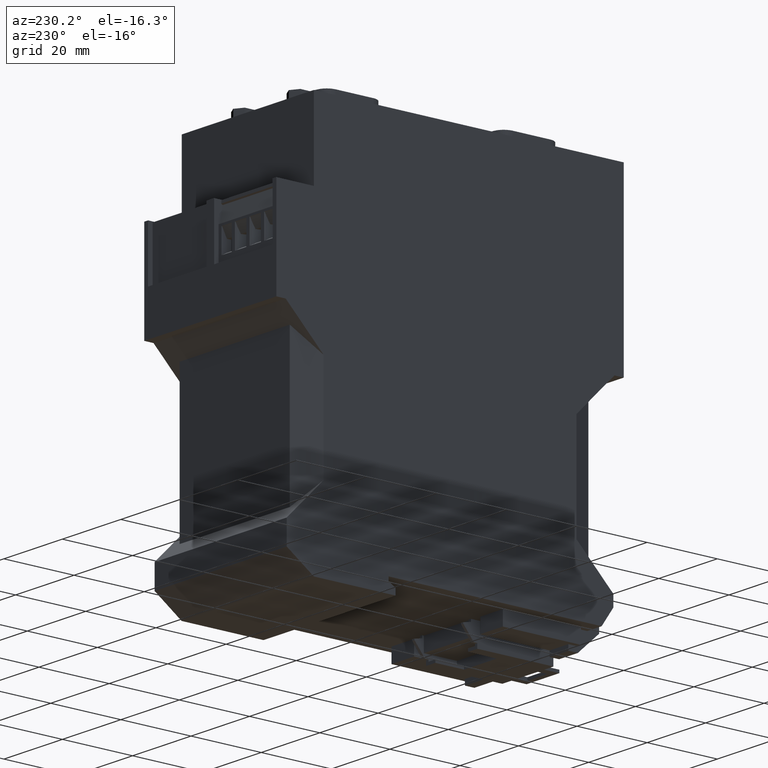
[diagram: clean part render]
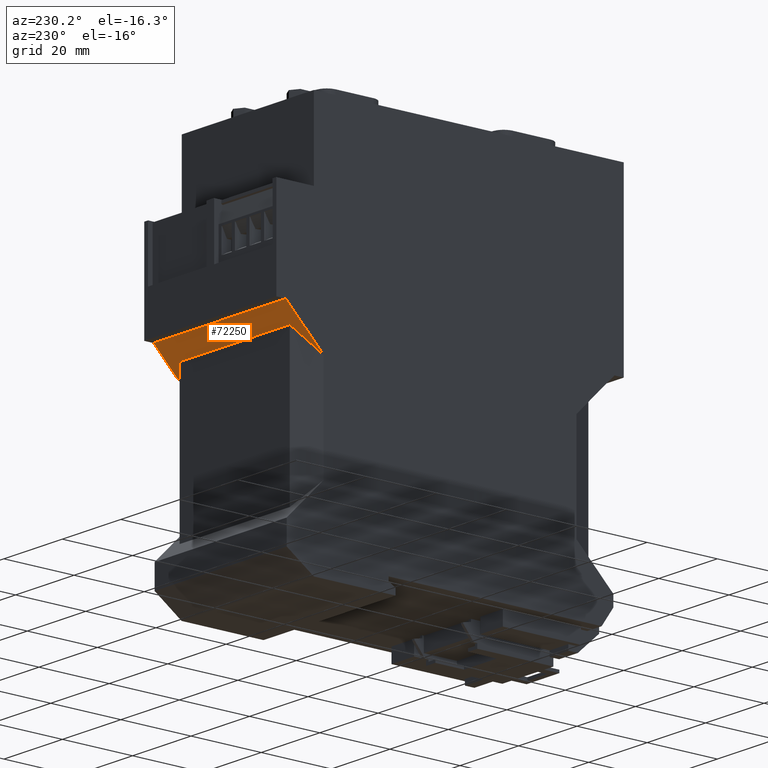
[diagram: same view with one face highlighted and labeled with its STEP entity id]
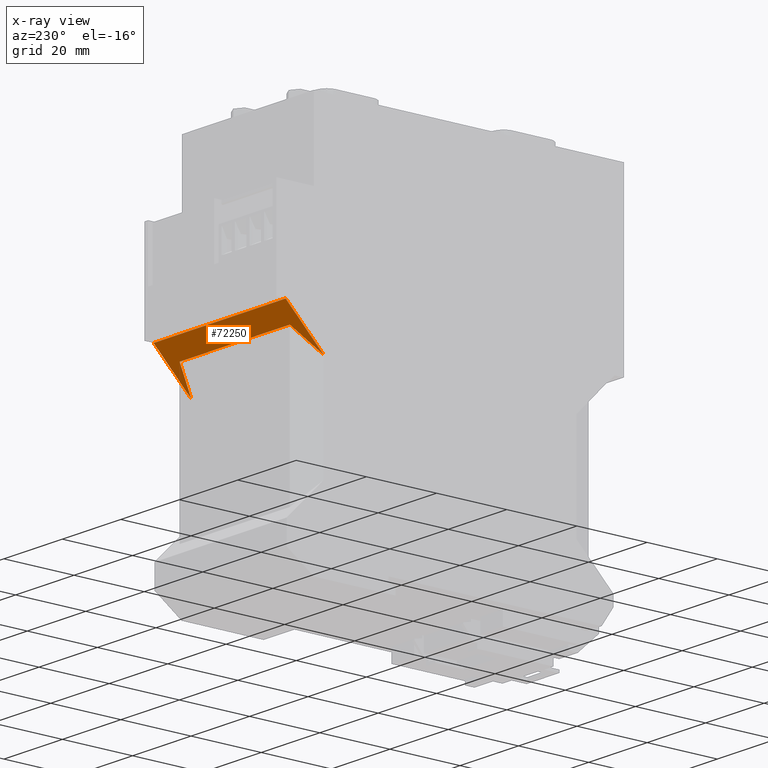
[diagram: x-ray of the same camera — body ghosted, the highlighted face saturated]
A machine part, auxiliary view. The second image highlights one B-rep face of the part: STEP entity #72250.
The next image is the same camera in x-ray: the body ghosted, the highlighted face saturated — about 0% of this face is hidden behind the body in this view.
In plain terms, the highlighted planar face has unit normal (0, -0.7071, 0.7071).
Its self-contained STEP definition (entity closure, byte-faithful):
#760=CARTESIAN_POINT('',(18.5500000000902,47.1000000000011,-11.3));
#770=VERTEX_POINT('',#760);
#800=CARTESIAN_POINT('',(24.,52.5499999999109,-11.3));
#810=DIRECTION('',(0.707106781186551,0.707106781186544,0.));
#820=VECTOR('',#810,1.);
#830=LINE('',#800,#820);
#840=CARTESIAN_POINT('',(29.3500000000902,57.900000000001,-11.3));
#850=VERTEX_POINT('',#840);
#860=EDGE_CURVE('',#770,#850,#830,.T.);
#70740=CARTESIAN_POINT('',(24.,52.5499999999109,30.7534410329158));
#70750=DIRECTION('',(0.65465367070798,0.654653670707974,
-0.377964473009227));
#70760=VECTOR('',#70750,1.);
#70770=LINE('',#70740,#70760);
#70780=CARTESIAN_POINT('',(18.5499999999986,47.0999999999095,33.9));
#70790=VERTEX_POINT('',#70780);
#70800=CARTESIAN_POINT('',(25.0500000000939,53.6000000000048,
30.1472232502124));
#70810=VERTEX_POINT('',#70800);
#70820=EDGE_CURVE('',#70790,#70810,#70770,.T.);
#71880=CARTESIAN_POINT('',(-26.7499999999105,1.80000000000086,0.));
#71890=DIRECTION('',(-0.707106781186544,0.707106781186551,0.));
#71900=DIRECTION('',(0.707106781186551,0.707106781186544,0.));
#71910=AXIS2_PLACEMENT_3D('',#71880,#71890,#71900);
#71920=PLANE('',#71910);
#71930=ORIENTED_EDGE('',*,*,#860,.T.);
#71940=CARTESIAN_POINT('',(24.,52.5499999999109,-8.15344103296862));
#71950=DIRECTION('',(0.65465367070798,0.654653670707975,
0.377964473009226));
#71960=VECTOR('',#71950,1.);
#71970=LINE('',#71940,#71960);
#71980=CARTESIAN_POINT('',(25.0500000000871,53.599999999998,
-7.54722325026923));
#71990=VERTEX_POINT('',#71980);
#72000=EDGE_CURVE('',#770,#71990,#71970,.T.);
#72010=ORIENTED_EDGE('',*,*,#72000,.F.);
#72020=CARTESIAN_POINT('',(25.0500000000854,53.5999999999963,-11.3));
#72030=DIRECTION('',(4.52799999999997E-13,4.52799999999993E-13,1.));
#72040=VECTOR('',#72030,1.);
#72050=LINE('',#72020,#72040);
#72060=EDGE_CURVE('',#71990,#70810,#72050,.T.);
#72070=ORIENTED_EDGE('',*,*,#72060,.F.);
#72080=ORIENTED_EDGE('',*,*,#70820,.T.);
#72090=CARTESIAN_POINT('',(24.,52.5499999999109,33.9));
#72100=DIRECTION('',(0.707106781186551,0.707106781186544,0.));
#72110=VECTOR('',#72100,1.);
#72120=LINE('',#72090,#72110);
#72130=CARTESIAN_POINT('',(29.3500000000902,57.900000000001,33.9));
#72140=VERTEX_POINT('',#72130);
#72150=EDGE_CURVE('',#70790,#72140,#72120,.T.);
#72160=ORIENTED_EDGE('',*,*,#72150,.F.);
#72170=CARTESIAN_POINT('',(29.3500000000902,57.9000000000011,-11.3));
#72180=DIRECTION('',(0.,0.,1.));
#72190=VECTOR('',#72180,1.);
#72200=LINE('',#72170,#72190);
#72210=EDGE_CURVE('',#850,#72140,#72200,.T.);
#72220=ORIENTED_EDGE('',*,*,#72210,.T.);
#72230=EDGE_LOOP('',(#72220,#72160,#72080,#72070,#72010,#71930));
#72240=FACE_OUTER_BOUND('',#72230,.T.);
#72250=ADVANCED_FACE('',(#72240),#71920,.F.);